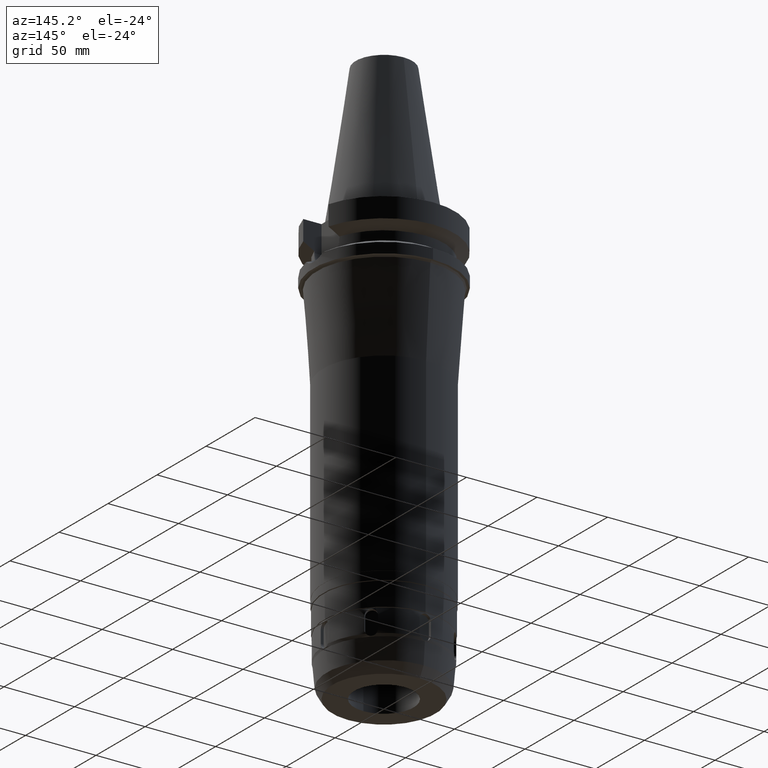
[diagram: clean part render]
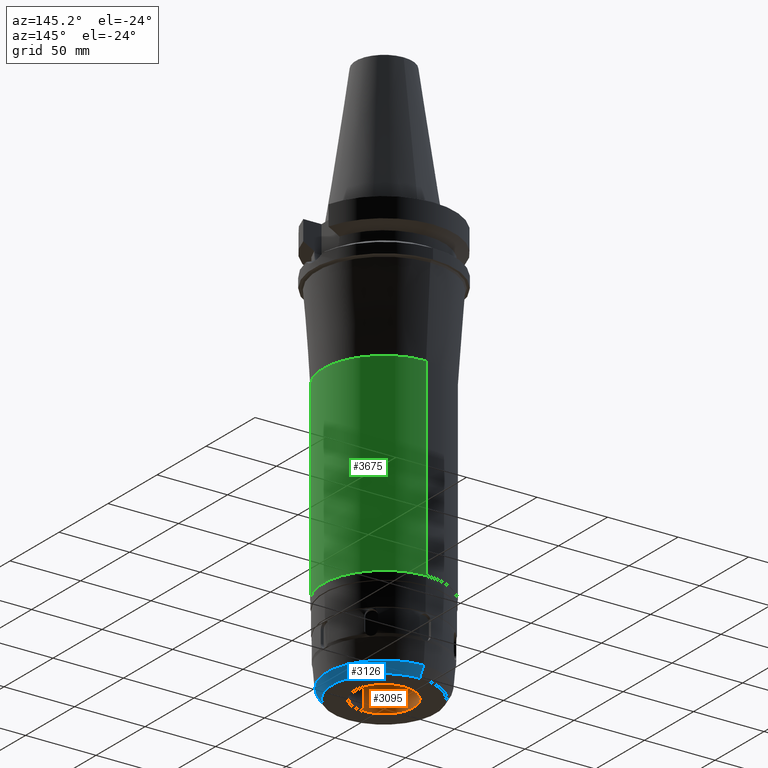
[diagram: same view with three faces highlighted in distinct colors, each labeled with its STEP entity id]
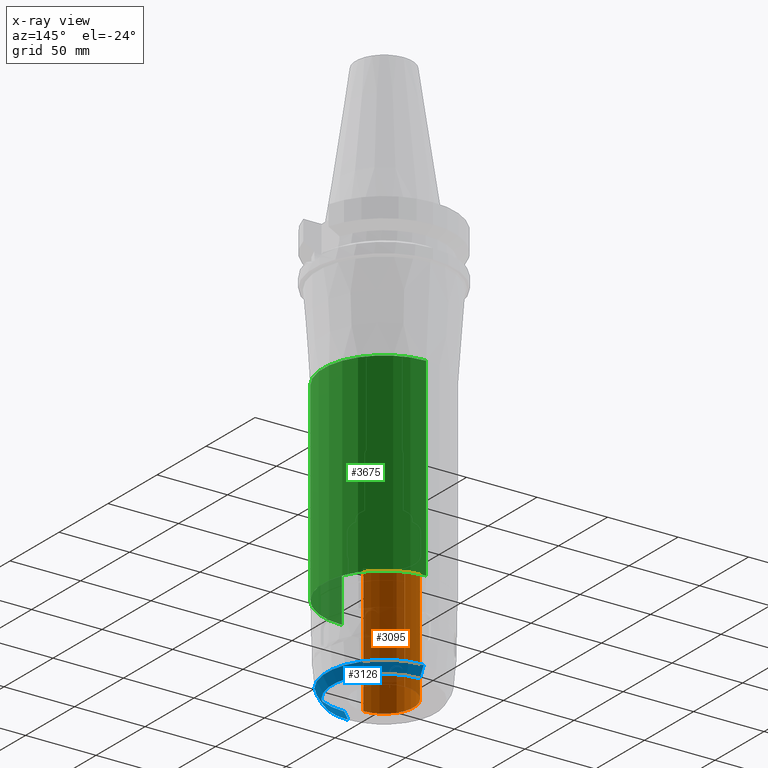
[diagram: x-ray of the same camera — body ghosted, the three highlighted faces saturated]
A machine part, auxiliary view with three faces highlighted in distinct colors.
The next image is the same camera in x-ray (body ghosted, the three faces saturated) — at least one of them is partly hidden behind the body in this view.
Their STEP definitions:

[orange] entity #3095 — the highlighted cylindrical surface (edge-blend (fillet) strip) has radius 21 mm, axis along (0, 0, -1).
#240=CARTESIAN_POINT('',(0.E0,2.717368782628E-14,-2.09E2));
#241=DIRECTION('',(0.E0,0.E0,1.E0));
#242=DIRECTION('',(0.E0,1.E0,0.E0));
#243=AXIS2_PLACEMENT_3D('',#240,#241,#242);
#248=DIRECTION('',(0.E0,0.E0,1.E0));
#249=VECTOR('',#248,9.1E1);
#250=CARTESIAN_POINT('',(0.E0,2.1E1,-3.E2));
#251=LINE('',#250,#249);
#255=DIRECTION('',(0.E0,0.E0,1.E0));
#256=VECTOR('',#255,9.1E1);
#257=CARTESIAN_POINT('',(0.E0,-2.1E1,-3.E2));
#258=LINE('',#257,#256);
#278=CARTESIAN_POINT('',(0.E0,2.717368782628E-14,-3.E2));
#279=DIRECTION('',(0.E0,0.E0,-1.E0));
#280=DIRECTION('',(0.E0,-1.E0,0.E0));
#281=AXIS2_PLACEMENT_3D('',#278,#279,#280);
#2523=CARTESIAN_POINT('',(0.E0,-2.1E1,-2.09E2));
#2524=CARTESIAN_POINT('',(0.E0,2.1E1,-2.09E2));
#2525=VERTEX_POINT('',#2523);
#2526=VERTEX_POINT('',#2524);
#2527=CARTESIAN_POINT('',(0.E0,2.1E1,-3.E2));
#2528=VERTEX_POINT('',#2527);
#2529=CARTESIAN_POINT('',(0.E0,-2.1E1,-3.E2));
#2530=VERTEX_POINT('',#2529);
#3083=CARTESIAN_POINT('',(0.E0,2.717368782628E-14,1.2189E2));
#3084=DIRECTION('',(0.E0,0.E0,-1.E0));
#3085=DIRECTION('',(0.E0,-1.E0,0.E0));
#3086=AXIS2_PLACEMENT_3D('',#3083,#3084,#3085);
#3087=CYLINDRICAL_SURFACE('',#3086,2.1E1);
#3088=ORIENTED_EDGE('',*,*,#3073,.F.);
#3090=ORIENTED_EDGE('',*,*,#3089,.F.);
#3091=ORIENTED_EDGE('',*,*,#3076,.T.);
#3092=ORIENTED_EDGE('',*,*,#3063,.F.);
#3093=EDGE_LOOP('',(#3088,#3090,#3091,#3092));
#3094=FACE_OUTER_BOUND('',#3093,.F.);
#244=CIRCLE('',#243,2.1E1);
#282=CIRCLE('',#281,2.1E1);
#3063=EDGE_CURVE('',#2526,#2525,#244,.T.);
#3073=EDGE_CURVE('',#2528,#2526,#251,.T.);
#3076=EDGE_CURVE('',#2530,#2525,#258,.T.);
#3089=EDGE_CURVE('',#2530,#2528,#282,.T.);
#3095=ADVANCED_FACE('',(#3094),#3087,.F.);

[blue] entity #3126 — the highlighted conical surface has half-angle 30 deg.
#262=CARTESIAN_POINT('',(0.E0,-2.407349445424E-14,-3.E2));
#263=DIRECTION('',(0.E0,0.E0,1.E0));
#264=DIRECTION('',(0.E0,-1.E0,0.E0));
#265=AXIS2_PLACEMENT_3D('',#262,#263,#264);
#294=DIRECTION('',(0.E0,-4.999999999999E-1,-8.660254037845E-1));
#295=VECTOR('',#294,7.909698687897E0);
#296=CARTESIAN_POINT('',(0.E0,4.045484934395E1,-2.9315E2));
#297=LINE('',#296,#295);
#301=CARTESIAN_POINT('',(0.E0,-2.407349445424E-14,-2.9315E2));
#302=DIRECTION('',(0.E0,0.E0,1.E0));
#303=DIRECTION('',(0.E0,-1.E0,0.E0));
#304=AXIS2_PLACEMENT_3D('',#301,#302,#303);
#309=DIRECTION('',(0.E0,4.999999999999E-1,-8.660254037845E-1));
#310=VECTOR('',#309,7.909698687897E0);
#311=CARTESIAN_POINT('',(0.E0,-4.045484934395E1,-2.9315E2));
#312=LINE('',#311,#310);
#2531=CARTESIAN_POINT('',(0.E0,-3.65E1,-3.E2));
#2532=CARTESIAN_POINT('',(0.E0,3.65E1,-3.E2));
#2533=VERTEX_POINT('',#2531);
#2534=VERTEX_POINT('',#2532);
#2535=CARTESIAN_POINT('',(0.E0,4.045484934395E1,-2.9315E2));
#2536=VERTEX_POINT('',#2535);
#2537=CARTESIAN_POINT('',(0.E0,-4.045484934395E1,-2.9315E2));
#2538=VERTEX_POINT('',#2537);
#3112=CARTESIAN_POINT('',(0.E0,-2.407349445424E-14,-2.96575E2));
#3113=DIRECTION('',(0.E0,0.E0,1.E0));
#3114=DIRECTION('',(0.E0,1.E0,0.E0));
#3115=AXIS2_PLACEMENT_3D('',#3112,#3113,#3114);
#3116=CONICAL_SURFACE('',#3115,3.847742467197E1,3.E1);
#3118=ORIENTED_EDGE('',*,*,#3117,.T.);
#3119=ORIENTED_EDGE('',*,*,#3101,.F.);
#3121=ORIENTED_EDGE('',*,*,#3120,.F.);
#3123=ORIENTED_EDGE('',*,*,#3122,.T.);
#3124=EDGE_LOOP('',(#3118,#3119,#3121,#3123));
#3125=FACE_OUTER_BOUND('',#3124,.F.);
#266=CIRCLE('',#265,3.65E1);
#305=CIRCLE('',#304,4.045484934395E1);
#3101=EDGE_CURVE('',#2533,#2534,#266,.T.);
#3117=EDGE_CURVE('',#2536,#2534,#297,.T.);
#3120=EDGE_CURVE('',#2538,#2533,#312,.T.);
#3122=EDGE_CURVE('',#2538,#2536,#305,.T.);
#3126=ADVANCED_FACE('',(#3125),#3116,.T.);

[green] entity #3675 — the highlighted cylindrical surface (partial cylindrical patch) has radius 43 mm, axis along (0, 0, -1).
#1310=CARTESIAN_POINT('',(0.E0,2.717368782628E-14,-2.37E2));
#1311=DIRECTION('',(0.E0,0.E0,1.E0));
#1312=DIRECTION('',(0.E0,-1.E0,0.E0));
#1313=AXIS2_PLACEMENT_3D('',#1310,#1311,#1312);
#1342=DIRECTION('',(0.E0,-1.784136504390E-14,-1.E0));
#1343=VECTOR('',#1342,1.37E2);
#1344=CARTESIAN_POINT('',(0.E0,4.3E1,-1.E2));
#1345=LINE('',#1344,#1343);
#1349=DIRECTION('',(0.E0,1.789322947717E-14,-1.E0));
#1350=VECTOR('',#1349,1.37E2);
#1351=CARTESIAN_POINT('',(0.E0,-4.3E1,-1.E2));
#1352=LINE('',#1351,#1350);
#1378=CARTESIAN_POINT('',(0.E0,0.E0,-1.E2));
#1379=DIRECTION('',(0.E0,0.E0,-1.E0));
#1380=DIRECTION('',(0.E0,1.E0,0.E0));
#1381=AXIS2_PLACEMENT_3D('',#1378,#1379,#1380);
#2671=CARTESIAN_POINT('',(0.E0,-4.3E1,-2.37E2));
#2672=CARTESIAN_POINT('',(0.E0,4.3E1,-2.37E2));
#2673=VERTEX_POINT('',#2671);
#2674=VERTEX_POINT('',#2672);
#2675=CARTESIAN_POINT('',(0.E0,4.3E1,-1.E2));
#2676=VERTEX_POINT('',#2675);
#2677=CARTESIAN_POINT('',(0.E0,-4.3E1,-1.E2));
#2678=VERTEX_POINT('',#2677);
#3661=CARTESIAN_POINT('',(0.E0,2.717368782628E-14,1.2189E2));
#3662=DIRECTION('',(0.E0,0.E0,-1.E0));
#3663=DIRECTION('',(0.E0,-1.E0,0.E0));
#3664=AXIS2_PLACEMENT_3D('',#3661,#3662,#3663);
#3665=CYLINDRICAL_SURFACE('',#3664,4.3E1);
#3667=ORIENTED_EDGE('',*,*,#3666,.T.);
#3668=ORIENTED_EDGE('',*,*,#3650,.F.);
#3670=ORIENTED_EDGE('',*,*,#3669,.F.);
#3672=ORIENTED_EDGE('',*,*,#3671,.F.);
#3673=EDGE_LOOP('',(#3667,#3668,#3670,#3672));
#3674=FACE_OUTER_BOUND('',#3673,.F.);
#1314=CIRCLE('',#1313,4.3E1);
#1382=CIRCLE('',#1381,4.3E1);
#3650=EDGE_CURVE('',#2673,#2674,#1314,.T.);
#3666=EDGE_CURVE('',#2676,#2674,#1345,.T.);
#3669=EDGE_CURVE('',#2678,#2673,#1352,.T.);
#3671=EDGE_CURVE('',#2676,#2678,#1382,.T.);
#3675=ADVANCED_FACE('',(#3674),#3665,.T.);